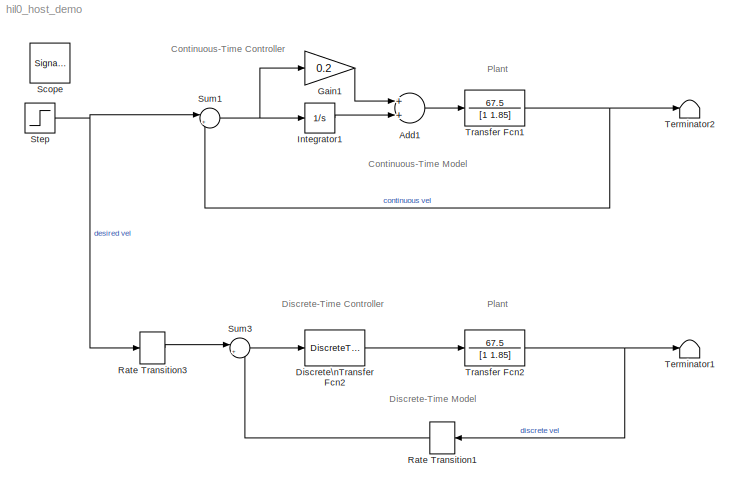
MODEL hil0_host_demo
KIND model
BLOCK [Sum] Add1
  InputSameDT = off
  OutDataType = fixdt(1, 16)
  OutDataTypeMode = Inherit via internal rule
  OutDataTypeStr = Inherit: Inherit via internal rule
  OutScaling = 2^-10
  Ports = [2, 1]
  SaturateOnIntegerOverflow = off
BLOCK [DiscreteTransferFcn] Discrete\nTransfer Fcn2
  Denominator = [1 -1]
  Numerator = [0.2 -0.195]
  SampleTime = -1
BLOCK [Gain] Gain1
  Gain = 0.2
  OutDataType = fixdt(1, 16)
  OutDataTypeMode = Inherit via internal rule
  OutDataTypeStr = Inherit: Inherit via internal rule
  OutScaling = 2^0
  ParamDataTypeStr = Inherit: Inherit via internal rule
  ParameterDataType = fixdt(1, 16)
  ParameterDataTypeMode = Inherit via internal rule
  ParameterScaling = 2^0
  SaturateOnIntegerOverflow = off
BLOCK [Integrator] Integrator1
  Ports = [1, 1]
BLOCK [RateTransition] Rate Transition1
  OutPortSampleTime = 0.005
BLOCK [RateTransition] Rate Transition3
  OutPortSampleTime = 0.005
BLOCK [SignalViewerScope] Scope
  DataFormat = Array
  IOType = viewer
  LegendLocations = 371.3333      357.6667           127      51.66667
  MaxDataPoints = 7500
  NumInputPorts = 1
  Ports = []
  RefreshTime = 0.035000
  ShowDataMarkers = off
  ShowLegends = on
  YMax = 800
  YMin = 0
BLOCK [Step] Step
  After = 700
  SampleTime = 0
BLOCK [Sum] Sum1
  IconShape = round
  InputSameDT = off
  Inputs = |+-
  OutDataType = fixdt(1, 16)
  OutDataTypeMode = Inherit via internal rule
  OutDataTypeStr = Inherit: Inherit via internal rule
  OutScaling = 2^0
  Ports = [2, 1]
  SaturateOnIntegerOverflow = off
BLOCK [Sum] Sum3
  IconShape = round
  InputSameDT = off
  Inputs = |+-
  OutDataType = fixdt(1, 16)
  OutDataTypeMode = Inherit via internal rule
  OutDataTypeStr = Inherit: Inherit via internal rule
  OutScaling = 2^0
  Ports = [2, 1]
  SaturateOnIntegerOverflow = off
BLOCK [Terminator] Terminator1
BLOCK [Terminator] Terminator2
BLOCK [TransferFcn] Transfer Fcn1
  Denominator = [1 1.85]
  Numerator = 67.5
BLOCK [TransferFcn] Transfer Fcn2
  Denominator = [1 1.85]
  Numerator = 67.5
ANNOTATION (root): Continuous-Time Controller
ANNOTATION (root): Continuous-Time Model
ANNOTATION (root): Discrete-Time Controller
ANNOTATION (root): Discrete-Time Model
ANNOTATION (root): Plant
LINE Add1:1 -> Transfer Fcn1:1
LINE Discrete\nTransfer Fcn2:1 -> Transfer Fcn2:1
LINE Gain1:1 -> Add1:1
LINE Integrator1:1 -> Add1:2
LINE Rate Transition1:1 -> Sum3:2
LINE Rate Transition3:1 -> Sum3:1
NET Step:1 -> Rate Transition3:1, Sum1:1
NET Sum1:1 -> Gain1:1, Integrator1:1
LINE Sum3:1 -> Discrete\nTransfer Fcn2:1
NET Transfer Fcn1:1 -> Sum1:2, Terminator2:1
NET Transfer Fcn2:1 -> Rate Transition1:1, Terminator1:1
note: NET lines group one-source signal fan-out (src -> all destinations, sorted); 1:1 wires keep LINE
